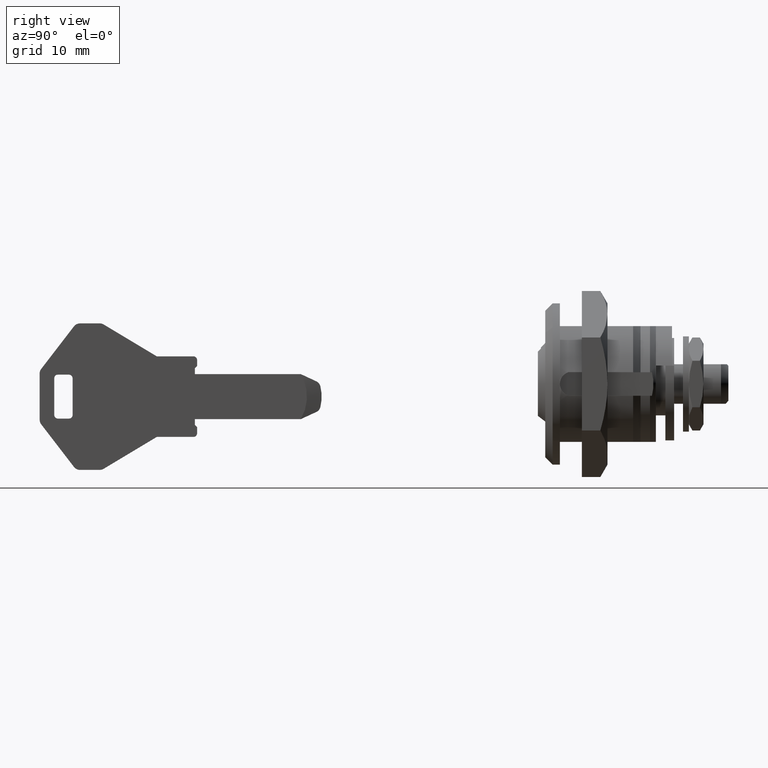
[diagram: clean part render]
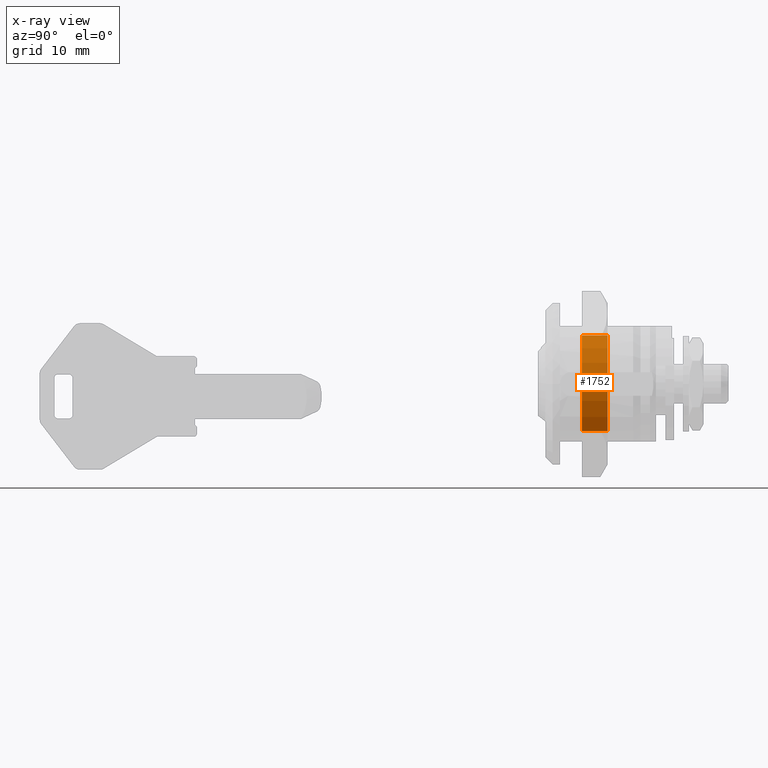
[diagram: x-ray — body ghosted, one internal face saturated and labeled with its STEP entity id]
A machine part, right view, then the same camera in x-ray: the body is ghosted and one INTERNAL B-rep face — a face not visible from any outside direction — is saturated and labeled: STEP entity #1752.
In plain terms, the highlighted face is a freeform B-spline surface patch.
Its self-contained STEP definition (entity closure, byte-faithful):
#1561=CARTESIAN_POINT('',(5.000000000011195,-6.808183970383124,6.625603649933062));
#1562=VERTEX_POINT('',#1561);
#1605=CARTESIAN_POINT('',(4.999999999993253,-7.004135040535623,-6.418107167090851));
#1606=VERTEX_POINT('',#1605);
#1618=CARTESIAN_POINT('',(8.500000000000000,-7.004135039800148,-6.418107167893481));
#1619=VERTEX_POINT('',#1618);
#1620=CARTESIAN_POINT('',(8.500000000000000,-7.004135039800148,-6.418107167893481));
#1621=CARTESIAN_POINT('',(4.999999999993253,-7.004135040535623,-6.418107167090851));
#1622=QUASI_UNIFORM_CURVE('',1,(#1620,#1621),.UNSPECIFIED.,.F.,.U.);
#1623=EDGE_CURVE('',#1619,#1606,#1622,.T.);
#1671=CARTESIAN_POINT('',(8.500000000000000,-6.808183970266305,6.625603650053099));
#1672=VERTEX_POINT('',#1671);
#1683=CARTESIAN_POINT('',(8.500000000000000,-6.808183970266305,6.625603650053099));
#1684=CARTESIAN_POINT('',(5.000000000011195,-6.808183970383124,6.625603649933062));
#1685=QUASI_UNIFORM_CURVE('',1,(#1683,#1684),.UNSPECIFIED.,.F.,.U.);
#1686=EDGE_CURVE('',#1672,#1562,#1685,.T.);
#1691=CARTESIAN_POINT('',(8.587499999999997,-7.004134699696176,-6.418106972348770));
#1692=CARTESIAN_POINT('',(8.587499999999997,-13.065096096684892,0.196271724837706));
#1693=CARTESIAN_POINT('',(8.587499999999999,-6.808184236133325,6.625603927708450));
#1694=CARTESIAN_POINT('',(4.910312500000122,-7.004134699696176,-6.418106972348770));
#1695=CARTESIAN_POINT('',(4.910312500000122,-13.065096096684892,0.196271724837706));
#1696=CARTESIAN_POINT('',(4.910312500000122,-6.808184236133325,6.625603927708450));
#1704=(BOUNDED_SURFACE()B_SPLINE_SURFACE(2,1,((#1691,#1694),(#1692,#1695),(#1693,#1696)),.UNSPECIFIED.,.F.,.F.,.U.)B_SPLINE_SURFACE_WITH_KNOTS((3,3),(2,2),(0.0,15.106363807733510),(0.0,3.677187499999876),.UNSPECIFIED.)GEOMETRIC_REPRESENTATION_ITEM()RATIONAL_B_SPLINE_SURFACE(((1.0,1.0),(0.718822509939086,0.718822509939086),(0.977505800795127,0.977505800795127)))REPRESENTATION_ITEM('')SURFACE());
#1705=CARTESIAN_POINT('',(5.000000000000120,-9.499999999999876,-0.000001537286094));
#1706=VERTEX_POINT('',#1705);
#1707=CARTESIAN_POINT('',(5.000000000011195,-6.808183970383124,6.625603649933062));
#1708=CARTESIAN_POINT('',(5.000000000010419,-7.261013454221423,6.160404049567537));
#1709=CARTESIAN_POINT('',(5.000000000008570,-8.142266119315069,5.046391165903916));
#1710=CARTESIAN_POINT('',(5.000000000005788,-8.922532792063702,3.415538750417295));
#1711=CARTESIAN_POINT('',(5.000000000003007,-9.393840573603717,1.680241995863262));
#1712=CARTESIAN_POINT('',(5.000000000001133,-9.500105087011248,0.649212310500783));
#1713=CARTESIAN_POINT('',(5.000000000000120,-9.499999999999876,-0.000001537286094));
#1714=B_SPLINE_CURVE_WITH_KNOTS('',3,(#1707,#1708,#1709,#1710,#1711,#1712,#1713),.UNSPECIFIED.,.F.,.U.,(4,1,1,1,4),(0.000000025303089,1.947621851635671,4.238935230307878,5.384598780757583,7.332220607102652),.UNSPECIFIED.);
#1715=EDGE_CURVE('',#1562,#1706,#1714,.T.);
#1716=ORIENTED_EDGE('',*,*,#1715,.F.);
#1717=ORIENTED_EDGE('',*,*,#1686,.F.);
#1718=CARTESIAN_POINT('',(8.500000000000000,-9.499999999999876,-0.000001537286094));
#1719=VERTEX_POINT('',#1718);
#1720=CARTESIAN_POINT('',(8.500000000000000,-6.808183970266305,6.625603650053099));
#1721=CARTESIAN_POINT('',(8.500000000000018,-7.261024200193577,6.160408885729972));
#1722=CARTESIAN_POINT('',(8.499999999999988,-8.094583167065778,5.106592910386573));
#1723=CARTESIAN_POINT('',(8.499999999999968,-8.893321656888690,3.487461747056814));
#1724=CARTESIAN_POINT('',(8.500000000000080,-9.386013196321750,1.756635255963851));
#1725=CARTESIAN_POINT('',(8.499999999999961,-9.500085734673958,0.649207265663330));
#1726=CARTESIAN_POINT('',(8.500000000000000,-9.499999999999876,-0.000001537286094));
#1727=B_SPLINE_CURVE_WITH_KNOTS('',3,(#1720,#1721,#1722,#1723,#1724,#1725,#1726),.UNSPECIFIED.,.F.,.U.,(4,1,1,1,4),(0.000000025303295,1.947621851680101,4.009787984494103,5.384598780880587,7.332220607270155),.UNSPECIFIED.);
#1728=EDGE_CURVE('',#1672,#1719,#1727,.T.);
#1729=ORIENTED_EDGE('',*,*,#1728,.T.);
#1730=CARTESIAN_POINT('',(8.500000000000000,-9.499999999999876,-0.000001537286094));
#1731=CARTESIAN_POINT('',(8.500000000000009,-9.500104336926455,-0.660642950557142));
#1732=CARTESIAN_POINT('',(8.499999999999993,-9.380823809021958,-1.798367564879256));
#1733=CARTESIAN_POINT('',(8.500000000000005,-8.958002457033631,-3.246966724883214));
#1734=CARTESIAN_POINT('',(8.500000000000012,-8.272792191839063,-4.793084199117629));
#1735=CARTESIAN_POINT('',(8.499999999999996,-7.574643833326799,-5.795888342888125));
#1736=CARTESIAN_POINT('',(8.500000000000000,-7.004135039800148,-6.418107167893481));
#1737=B_SPLINE_CURVE_WITH_KNOTS('',3,(#1730,#1731,#1732,#1733,#1734,#1735,#1736),.UNSPECIFIED.,.F.,.U.,(4,1,1,1,4),(0.000000024733033,1.981914675545661,3.413311564398584,4.514357622353407,7.046804813315018),.UNSPECIFIED.);
#1738=EDGE_CURVE('',#1719,#1619,#1737,.T.);
#1739=ORIENTED_EDGE('',*,*,#1738,.T.);
#1740=ORIENTED_EDGE('',*,*,#1623,.T.);
#1741=CARTESIAN_POINT('',(5.000000000000120,-9.499999999999876,-0.000001537286094));
#1742=CARTESIAN_POINT('',(4.999999999999330,-9.500145911626381,-0.734052576298287));
#1743=CARTESIAN_POINT('',(4.999999999997735,-9.324777150205755,-2.238774452306077));
#1744=CARTESIAN_POINT('',(4.999999999995337,-8.505679392823122,-4.458863508679970));
#1745=CARTESIAN_POINT('',(4.999999999993924,-7.574613196377166,-5.795878427053965));
#1746=CARTESIAN_POINT('',(4.999999999993253,-7.004135040535623,-6.418107167090851));
#1747=B_SPLINE_CURVE_WITH_KNOTS('',3,(#1741,#1742,#1743,#1744,#1745,#1746),.UNSPECIFIED.,.F.,.U.,(4,1,1,4),(0.000000024734181,2.202132155426484,4.514357621656305,7.046804812226353),.UNSPECIFIED.);
#1748=EDGE_CURVE('',#1706,#1606,#1747,.T.);
#1749=ORIENTED_EDGE('',*,*,#1748,.F.);
#1750=EDGE_LOOP('',(#1716,#1717,#1729,#1739,#1740,#1749));
#1751=FACE_OUTER_BOUND('',#1750,.T.);
#1752=ADVANCED_FACE('',(#1751),#1704,.F.);